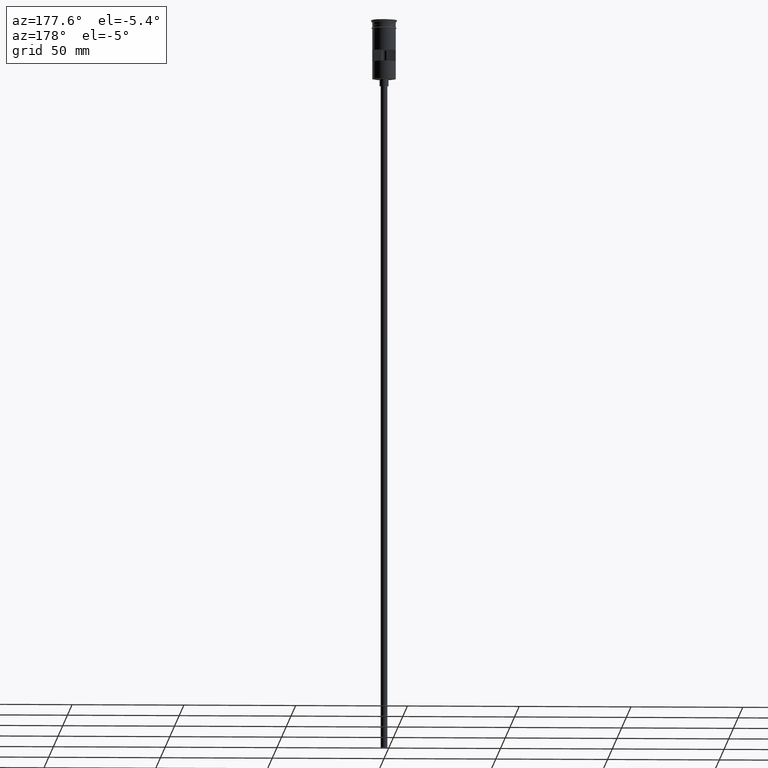
[diagram: clean part render]
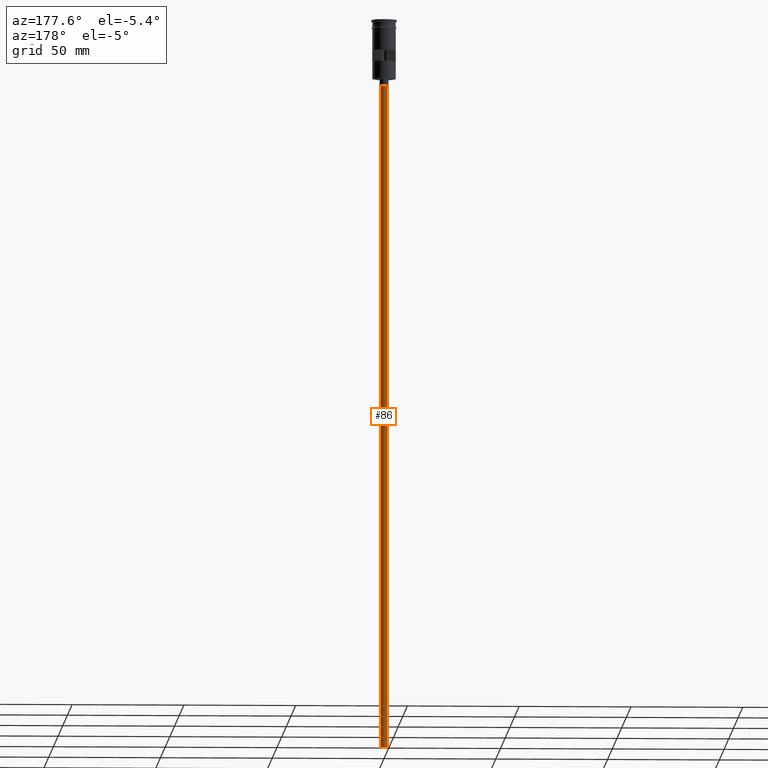
[diagram: same view with one face highlighted and labeled with its STEP entity id]
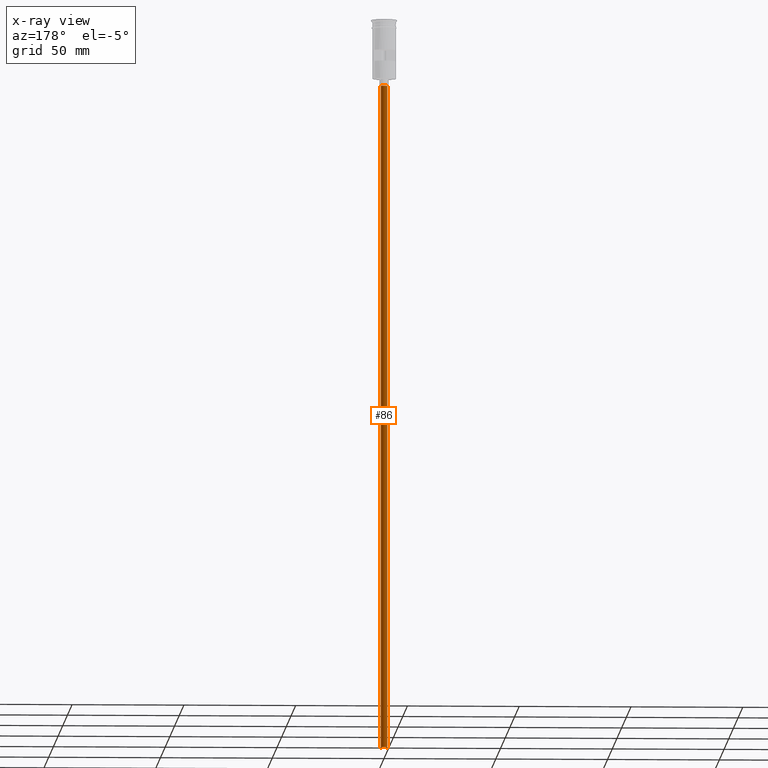
[diagram: x-ray of the same camera — body ghosted, the highlighted face saturated]
A machine part, auxiliary view. The second image highlights one B-rep face of the part: STEP entity #86.
The next image is the same camera in x-ray: the body ghosted, the highlighted face saturated — about 0% of this face is hidden behind the body in this view.
In plain terms, the highlighted cylindrical surface (edge-blend (fillet) strip) has radius 1.5 mm, axis along (-0, -0, 1).
Its self-contained STEP definition (entity closure, byte-faithful):
#27 = ORIENTED_EDGE ( 'NONE', *, *, #828, .F. ) ;
#86 = ADVANCED_FACE ( 'NONE', ( #1376 ), #186, .T. ) ;
#87 = DIRECTION ( 'NONE',  ( -0.000000000000000000, -0.000000000000000000, 1.000000000000000000 ) ) ;
#123 = CIRCLE ( 'NONE', #799, 1.500000000000000222 ) ;
#124 = CARTESIAN_POINT ( 'NONE',  ( 0.000000000000000000, 0.000000000000000000, -326.5000000000000000 ) ) ;
#186 = CYLINDRICAL_SURFACE ( 'NONE', #1547, 1.500000000000000222 ) ;
#256 = CIRCLE ( 'NONE', #955, 1.500000000000000222 ) ;
#320 = ORIENTED_EDGE ( 'NONE', *, *, #961, .T. ) ;
#482 = EDGE_CURVE ( 'NONE', #1275, #985, #486, .T. ) ;
#486 = LINE ( 'NONE', #984, #1056 ) ;
#561 = ORIENTED_EDGE ( 'NONE', *, *, #482, .F. ) ;
#649 = DIRECTION ( 'NONE',  ( -0.000000000000000000, -0.000000000000000000, 1.000000000000000000 ) ) ;
#675 = DIRECTION ( 'NONE',  ( 1.000000000000000000, 0.000000000000000000, 0.000000000000000000 ) ) ;
#703 = CARTESIAN_POINT ( 'NONE',  ( -1.500000000000000222, 1.836970198721030181E-16, -326.5000000000000000 ) ) ;
#799 = AXIS2_PLACEMENT_3D ( 'NONE', #1070, #922, #1425 ) ;
#814 = CARTESIAN_POINT ( 'NONE',  ( 1.500000000000000222, 0.000000000000000000, -29.50000000000000000 ) ) ;
#819 = ORIENTED_EDGE ( 'NONE', *, *, #1403, .T. ) ;
#828 = EDGE_CURVE ( 'NONE', #1245, #1275, #256, .T. ) ;
#922 = DIRECTION ( 'NONE',  ( 0.000000000000000000, 0.000000000000000000, -1.000000000000000000 ) ) ;
#955 = AXIS2_PLACEMENT_3D ( 'NONE', #124, #1095, #1349 ) ;
#961 = EDGE_CURVE ( 'NONE', #1245, #1335, #1457, .T. ) ;
#984 = CARTESIAN_POINT ( 'NONE',  ( 1.500000000000000222, 0.000000000000000000, -326.5000000000000000 ) ) ;
#985 = VERTEX_POINT ( 'NONE', #814 ) ;
#1056 = VECTOR ( 'NONE', #1477, 1000.000000000000000 ) ;
#1070 = CARTESIAN_POINT ( 'NONE',  ( 0.000000000000000000, 0.000000000000000000, -29.50000000000000000 ) ) ;
#1095 = DIRECTION ( 'NONE',  ( 0.000000000000000000, 0.000000000000000000, -1.000000000000000000 ) ) ;
#1190 = CARTESIAN_POINT ( 'NONE',  ( -1.500000000000000222, 1.836970198721030181E-16, -29.50000000000000000 ) ) ;
#1245 = VERTEX_POINT ( 'NONE', #1408 ) ;
#1275 = VERTEX_POINT ( 'NONE', #1539 ) ;
#1335 = VERTEX_POINT ( 'NONE', #1190 ) ;
#1349 = DIRECTION ( 'NONE',  ( -1.000000000000000000, 0.000000000000000000, 0.000000000000000000 ) ) ;
#1376 = FACE_OUTER_BOUND ( 'NONE', #1437, .T. ) ;
#1403 = EDGE_CURVE ( 'NONE', #1335, #985, #123, .T. ) ;
#1408 = CARTESIAN_POINT ( 'NONE',  ( -1.500000000000000222, 1.836970198721030181E-16, -326.5000000000000000 ) ) ;
#1425 = DIRECTION ( 'NONE',  ( -1.000000000000000000, 0.000000000000000000, 0.000000000000000000 ) ) ;
#1437 = EDGE_LOOP ( 'NONE', ( #27, #320, #819, #561 ) ) ;
#1457 = LINE ( 'NONE', #703, #1526 ) ;
#1477 = DIRECTION ( 'NONE',  ( -0.000000000000000000, -0.000000000000000000, 1.000000000000000000 ) ) ;
#1515 = CARTESIAN_POINT ( 'NONE',  ( 0.000000000000000000, 0.000000000000000000, -326.5000000000000000 ) ) ;
#1526 = VECTOR ( 'NONE', #87, 1000.000000000000000 ) ;
#1539 = CARTESIAN_POINT ( 'NONE',  ( 1.500000000000000222, 0.000000000000000000, -326.5000000000000000 ) ) ;
#1547 = AXIS2_PLACEMENT_3D ( 'NONE', #1515, #649, #675 ) ;